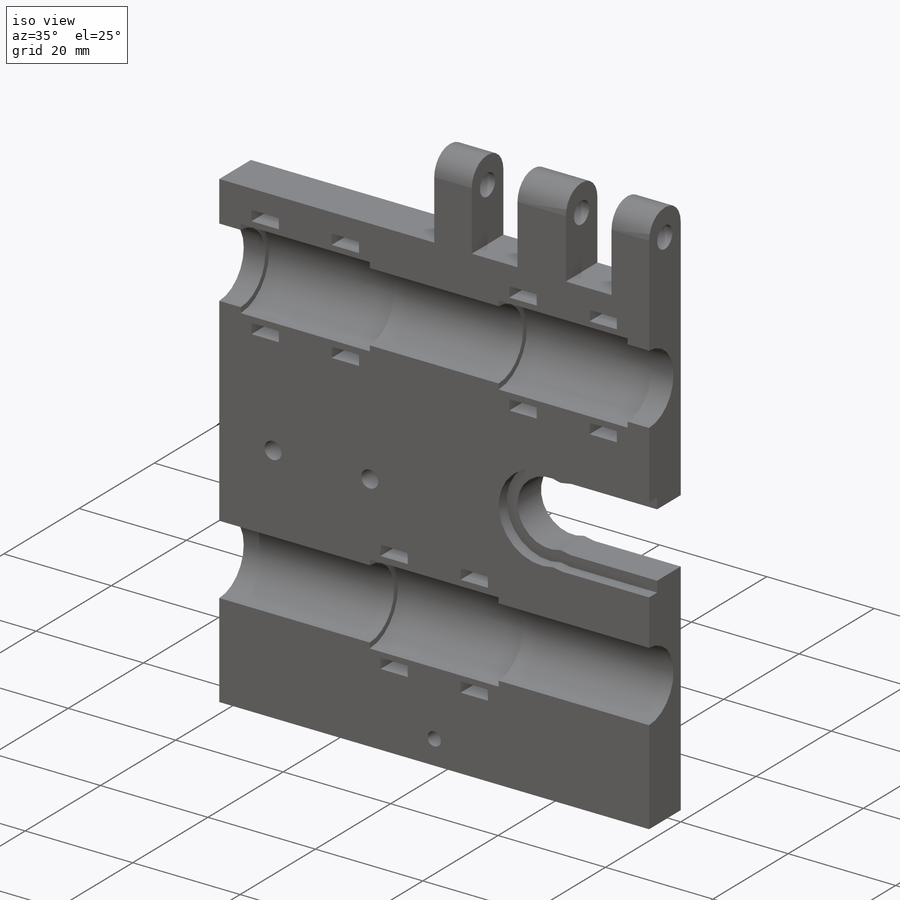
[diagram: iso view]
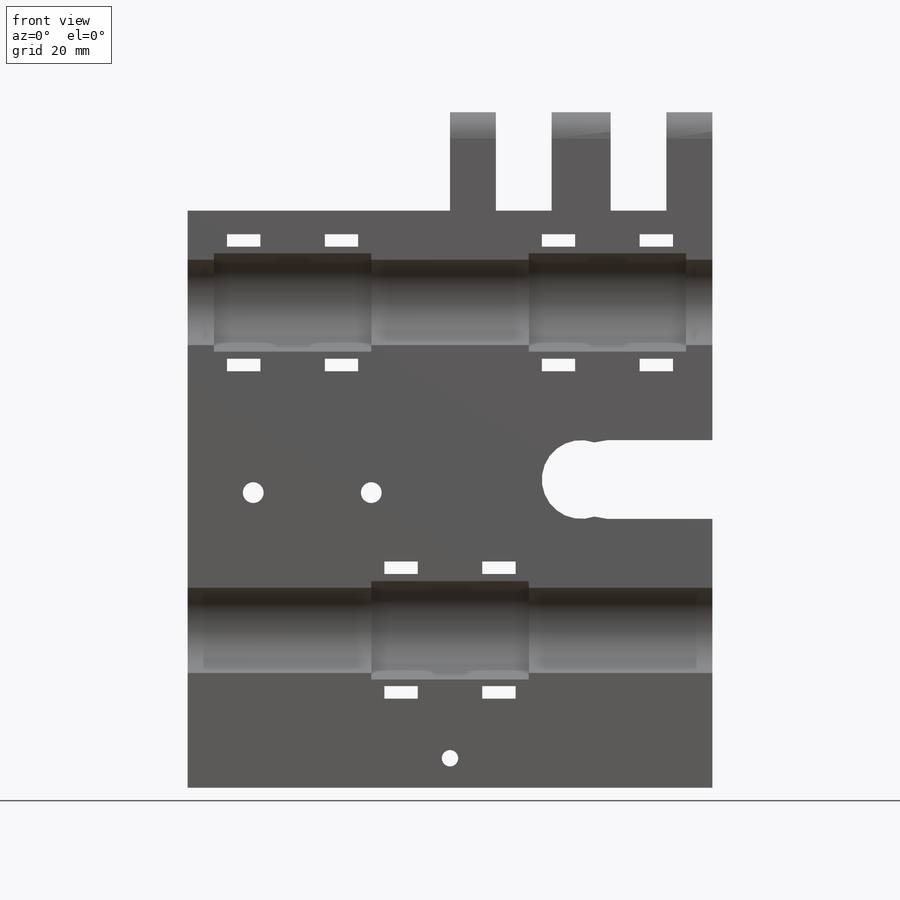
[diagram: front view]
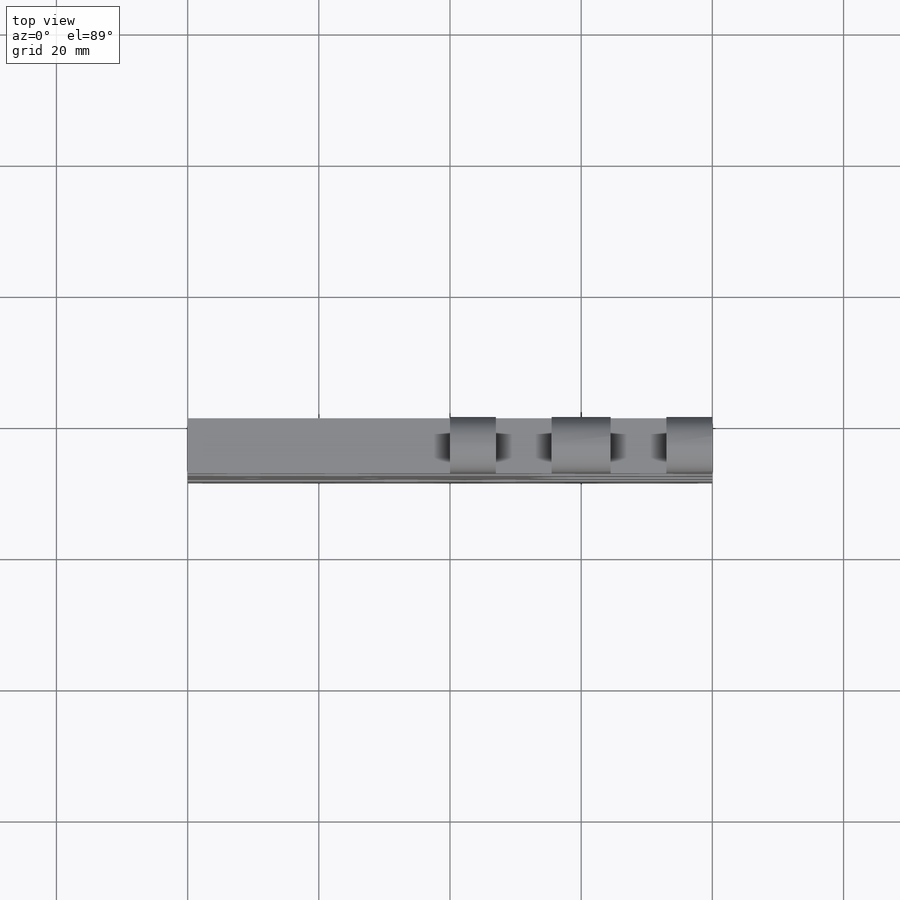
[diagram: top view]
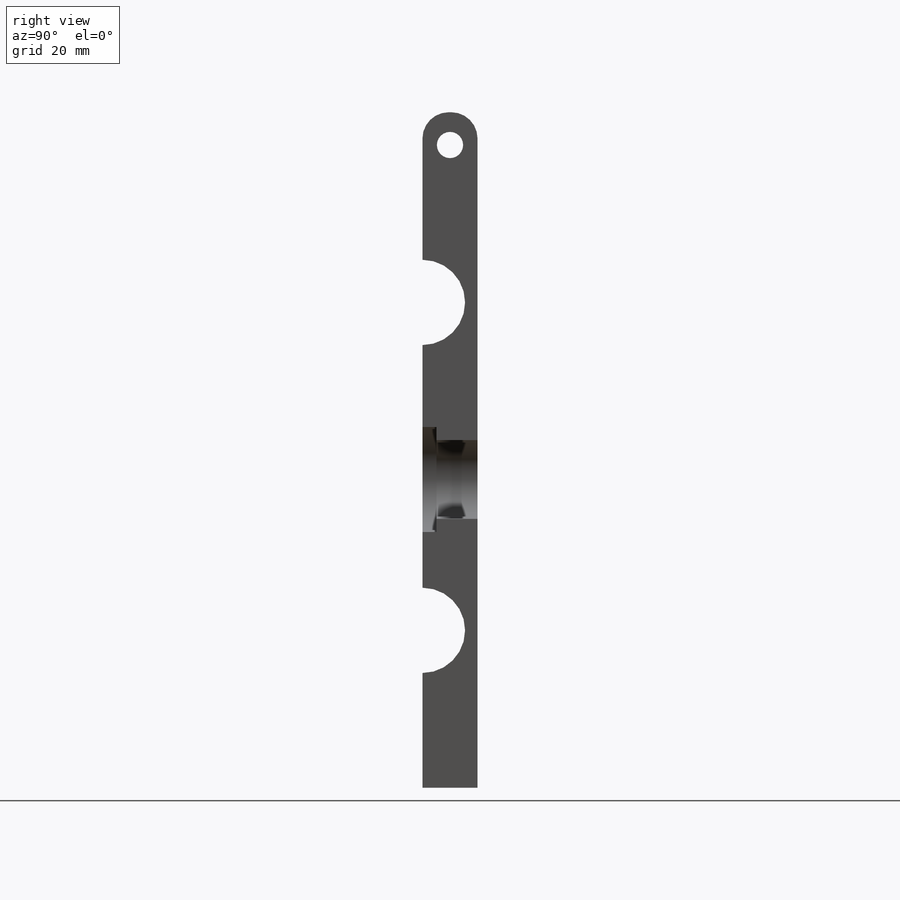
[diagram: right view]
SOLIDWORKS PART (.sldprt)
format: sldprt  version: not decoded by parser v0  size: 566,272 bytes
history: native  units: mm
features: sketch x13, cut_extrude x6, extrude x3, cut_revolve x2, pattern_linear x2, material x1, hole x1, plane x1, fillet x1 (+12 scaffold rows collapsed)
feature tree (42):
  scaffold x12  (default folders/planes/origin — collapsed)
  material  "Material <not specified>"
  sketch  "Sketch1"  dims[D1=78.0mm D2=80.0mm]
  extrude  "Boss-Extrude1"  Depth=8.4mm
  sketch  "Sketch2"  dims[c1.D1=15.0mm c1.D2=80.0mm c2.D1=42.0mm c2.D2=14.0mm c2.D3=80.0mm c3.D1=7.5mm c3.D3=6.5mm c3.D4=24.0mm c3.D5=24.0mm c3.D6=4.0mm c3.D7=4.0mm]
  cut_revolve  "Cut-Revolve1"  Angle=360deg
  sketch  "Sketch3"  dims[D1=6.5mm D2=7.5mm D3=24.0mm D4=28.0mm D5=14.0mm]
  cut_revolve  "Cut-Revolve2"  Angle=360deg
  sketch  "Sketch4"  dims[c1.D1=5.08mm c1.D2=5.08mm c1.D3=1.905mm c1.D4=1.905mm c1.D5=6.0mm c1.D6=2.0mm c1.D7=5.08mm c2.D7=90.0deg c3.D7=5.5mm]
  cut_extrude  "Cut-Extrude1"  [1 undecoded]
  pattern_linear  "LPattern1"  Count1=2 Count2=2 Spacing1=19mm Spacing2=48mm
  sketch  "Sketch5"  dims[D1=2.0mm D2=2.0mm D3=5.08mm D4=5.08mm D5=1.1mm D6=1.1mm D7=1.905mm D8=1.905mm]
  cut_extrude  "Cut-Extrude2"  Depth=8.4mm
  pattern_linear  "LPattern2"  Count1=2 Count2=1 Spacing1=19mm Spacing2=48mm
  sketch  "Sketch6"  dims[c1.D1=12.0mm c1.D2=37.0mm c1.D3=20.0mm c1.D4=4.0mm c1.D5=~1.14955mm c2.D5=170.0deg c2.D6=4.0mm c2.D7=~0.471265mm c3.D7=170.0deg]
  cut_extrude  "Cut-Extrude3"  [1 undecoded]
  sketch  "Sketch8"  dims[D1=2.0mm]
  cut_extrude  "Cut-Extrude4"  Depth=2.138mm
  sketch  "Sketch9"  dims[D5=3.175mm D6=3.175mm D1=7.0mm D2=31.5mm D3=5.0mm D4=28.0mm D7=18.0mm D8=10.0mm D9=35.0mm D10=35.0mm]
  cut_extrude  "Cut-Extrude5"  [1 undecoded]
  sketch  "Sketch11"
  extrude  "Boss-Extrude3"  Depth=10mm
  hole  "Ø2.5 (2.5) Diameter Hole1"  Diameter=2.5mm Depth=10mm
  sketch  "Sketch13"  dims[D1=19.5mm D2=40.0mm]
  sketch  "Sketch12"  dims[hole-wizard template sketch: 49 standard entries collapsed; hole parameters kept: c15.Drill Angle=180.0deg]
  sketch  "Sketch14"  dims[D1=7.0mm D2=9.0mm D3=7.0mm D4=8.5mm D5=8.5mm]
  extrude  "Boss-Extrude4"  Depth=15mm
  plane  "Plane1"
  sketch  "Sketch16"  dims[D1=4.0mm D2=0.0mm D3=10.0mm]
  cut_extrude  "Cut-Extrude6"  Depth=45.4mm
  fillet  "Fillet1"  Radius=4mm
decode coverage: 24 of 28 modeling features carry decoded parameters
note: ~ marks probable driven/reference dimensions
note: 3 parameter values undecoded
summary: no parameter record found for 3 features
note: suppression state not decoded; provenance and decode notes live in map.json
